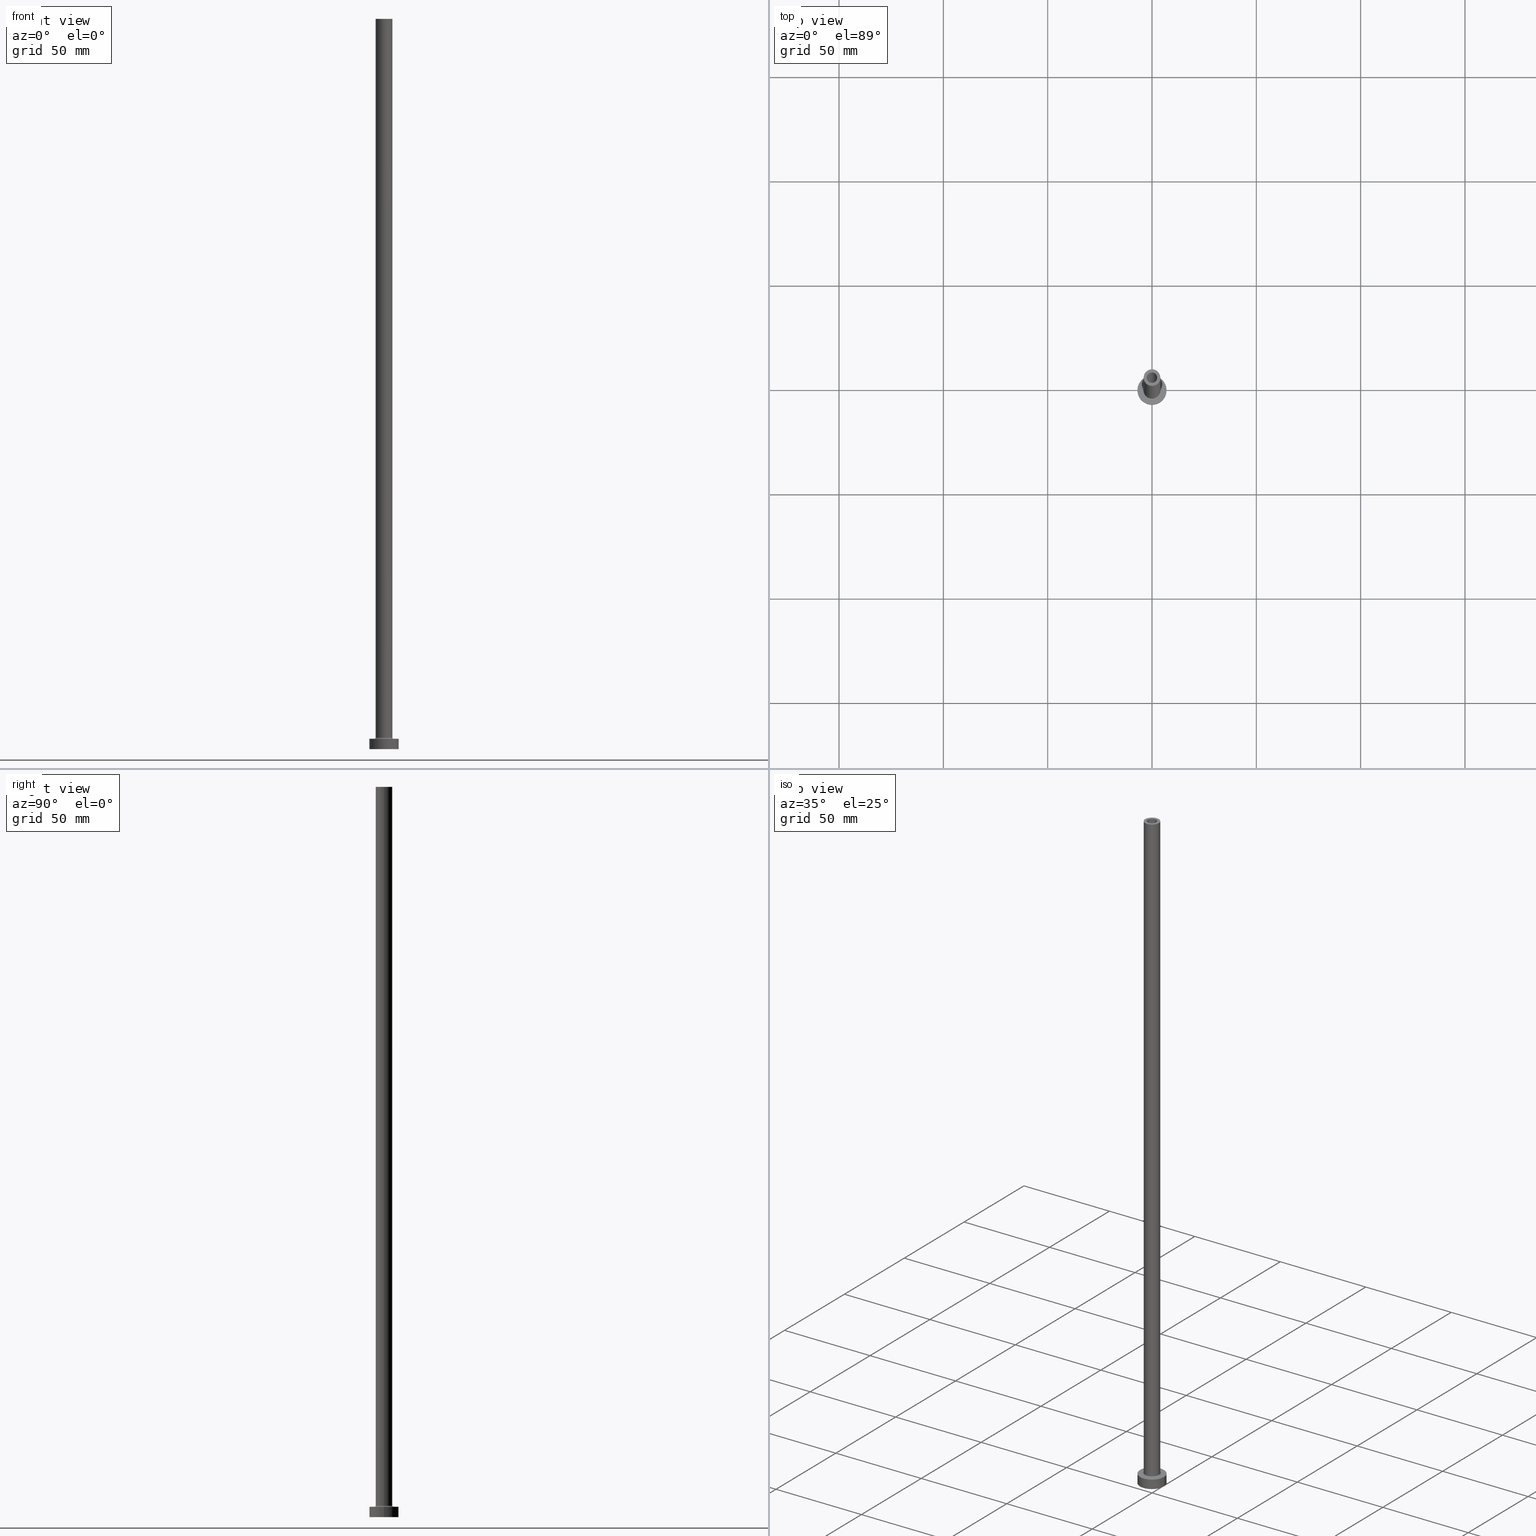
[diagram: canonical four-view strip — front | top / right | iso, engineering-drawing reading convention]
A machine part, canonical four-view strip (front | top / right | iso — engineering-drawing reading convention). The complete STEP part file that produces these views, byte-faithful:
ISO-10303-21;
HEADER;
FILE_DESCRIPTION (( 'STEP AP203' ),
    '1' );
FILE_NAME ('3701.STEP',
    '2023-02-13T17:09:50',
    ( '' ),
    ( '' ),
    'SwSTEP 2.0',
    'SolidWorks 2019',
    '' );
FILE_SCHEMA (( 'CONFIG_CONTROL_DESIGN' ));
ENDSEC;

DATA;
#1 = CARTESIAN_POINT ( 'NONE',  ( 0.000000000000000000, 0.000000000000000000, 5.500000000000005329 ) ) ;
#2 = CIRCLE ( 'NONE', #148, 7.000000000000000000 ) ;
#3 = DIRECTION ( 'NONE',  ( 0.000000000000000000, 0.000000000000000000, 1.000000000000000000 ) ) ;
#4 = ORIENTED_EDGE ( 'NONE', *, *, #141, .T. ) ;
#5 = CARTESIAN_POINT ( 'NONE',  ( 0.000000000000000000, 0.000000000000000000, 350.0000000000000000 ) ) ;
#6 = EDGE_CURVE ( 'NONE', #277, #183, #420, .T. ) ;
#7 = DIRECTION ( 'NONE',  ( -1.000000000000000000, 0.000000000000000000, 0.000000000000000000 ) ) ;
#8 = AXIS2_PLACEMENT_3D ( 'NONE', #1, #78, #35 ) ;
#9 = PERSON_AND_ORGANIZATION ( #40, #189 ) ;
#10 = CYLINDRICAL_SURFACE ( 'NONE', #191, 7.000000000000000000 ) ;
#11 = CALENDAR_DATE ( 2023, 13, 2 ) ;
#12 = DIRECTION ( 'NONE',  ( 0.000000000000000000, 0.000000000000000000, 1.000000000000000000 ) ) ;
#13 = ORIENTED_EDGE ( 'NONE', *, *, #336, .T. ) ;
#14 = CARTESIAN_POINT ( 'NONE',  ( 0.000000000000000000, 0.000000000000000000, 350.0000000000000000 ) ) ;
#15 = PRODUCT_DEFINITION_FORMATION_WITH_SPECIFIED_SOURCE ( 'LIBOVOLN�', '', #74, .NOT_KNOWN. ) ;
#16 = ORIENTED_EDGE ( 'NONE', *, *, #295, .F. ) ;
#17 = CARTESIAN_POINT ( 'NONE',  ( 0.000000000000000000, 0.000000000000000000, 0.000000000000000000 ) ) ;
#18 = ORIENTED_EDGE ( 'NONE', *, *, #264, .T. ) ;
#19 = EDGE_CURVE ( 'NONE', #183, #375, #177, .T. ) ;
#20 = CARTESIAN_POINT ( 'NONE',  ( -4.500000000000000888, 5.510910596163089556E-16, 5.500000000000005329 ) ) ;
#21 = ORIENTED_EDGE ( 'NONE', *, *, #434, .F. ) ;
#22 = CARTESIAN_POINT ( 'NONE',  ( 0.000000000000000000, 0.000000000000000000, 350.0000000000000000 ) ) ;
#23 = ADVANCED_FACE ( 'NONE', ( #150 ), #250, .F. ) ;
#24 = VERTEX_POINT ( 'NONE', #82 ) ;
#25 = CC_DESIGN_APPROVAL ( #444, ( #386 ) ) ;
#26 = FACE_OUTER_BOUND ( 'NONE', #425, .T. ) ;
#27 = AXIS2_PLACEMENT_3D ( 'NONE', #22, #455, #380 ) ;
#28 = ADVANCED_FACE ( 'NONE', ( #431 ), #401, .F. ) ;
#29 = EDGE_LOOP ( 'NONE', ( #87, #142, #288, #18 ) ) ;
#30 = CARTESIAN_POINT ( 'NONE',  ( 4.000000000000000000, 4.898587196589412829E-16, 5.500000000000005329 ) ) ;
#31 = EDGE_CURVE ( 'NONE', #198, #195, #127, .T. ) ;
#32 = ORIENTED_EDGE ( 'NONE', *, *, #118, .F. ) ;
#33 =( NAMED_UNIT ( * ) PLANE_ANGLE_UNIT ( ) SI_UNIT ( $, .RADIAN. ) );
#34 = AXIS2_PLACEMENT_3D ( 'NONE', #17, #131, #137 ) ;
#35 = DIRECTION ( 'NONE',  ( 1.000000000000000000, 0.000000000000000000, 0.000000000000000000 ) ) ;
#36 = VECTOR ( 'NONE', #103, 1000.000000000000000 ) ;
#37 = CIRCLE ( 'NONE', #294, 2.500000000000000000 ) ;
#38 = APPROVAL ( #41, 'NEUR�EN�' ) ;
#39 = VERTEX_POINT ( 'NONE', #218 ) ;
#40 = PERSON ( 'NEUR�EN�', 'NEUR�EN�', 'NEUR�EN�', ('NEUR�EN�'), ('NEUR�EN�'), ('NEUR�EN�') ) ;
#41 = APPROVAL_STATUS ( 'not_yet_approved' ) ;
#42 = CIRCLE ( 'NONE', #126, 4.000000000000000000 ) ;
#43 = ORIENTED_EDGE ( 'NONE', *, *, #313, .F. ) ;
#44 = PERSON_AND_ORGANIZATION ( #40, #189 ) ;
#45 = DIRECTION ( 'NONE',  ( 0.000000000000000000, 0.000000000000000000, 1.000000000000000000 ) ) ;
#46 = APPROVAL_DATE_TIME ( #367, #444 ) ;
#47 = CARTESIAN_POINT ( 'NONE',  ( 2.500000000000000000, 3.061616997868382648E-16, 350.0000000000000000 ) ) ;
#48 = CALENDAR_DATE ( 2023, 13, 2 ) ;
#49 = DIRECTION ( 'NONE',  ( 1.000000000000000000, 0.000000000000000000, 0.000000000000000000 ) ) ;
#50 = AXIS2_PLACEMENT_3D ( 'NONE', #368, #155, #338 ) ;
#51 = APPROVAL_ROLE ( '' ) ;
#52 = DIRECTION ( 'NONE',  ( 0.000000000000000000, 0.000000000000000000, -1.000000000000000000 ) ) ;
#53 = CC_DESIGN_PERSON_AND_ORGANIZATION_ASSIGNMENT ( #106, #243, ( #74 ) ) ;
#54 = ORIENTED_EDGE ( 'NONE', *, *, #208, .F. ) ;
#55 = EDGE_CURVE ( 'NONE', #207, #24, #185, .T. ) ;
#56 = CARTESIAN_POINT ( 'NONE',  ( 0.000000000000000000, 0.000000000000000000, 305.0000000000000000 ) ) ;
#57 = EDGE_LOOP ( 'NONE', ( #392, #439 ) ) ;
#58 = FACE_BOUND ( 'NONE', #347, .T. ) ;
#59 = AXIS2_PLACEMENT_3D ( 'NONE', #443, #61, #278 ) ;
#60 = AXIS2_PLACEMENT_3D ( 'NONE', #5, #340, #366 ) ;
#61 = DIRECTION ( 'NONE',  ( 0.000000000000000000, 0.000000000000000000, -1.000000000000000000 ) ) ;
#62 = ORIENTED_EDGE ( 'NONE', *, *, #273, .T. ) ;
#63 = DIRECTION ( 'NONE',  ( -0.000000000000000000, -0.000000000000000000, -1.000000000000000000 ) ) ;
#64 = DIRECTION ( 'NONE',  ( -1.000000000000000000, 0.000000000000000000, 0.000000000000000000 ) ) ;
#65 = CARTESIAN_POINT ( 'NONE',  ( 0.000000000000000000, 0.000000000000000000, 5.500000000000005329 ) ) ;
#66 = ORIENTED_EDGE ( 'NONE', *, *, #174, .T. ) ;
#67 = AXIS2_PLACEMENT_3D ( 'NONE', #75, #317, #459 ) ;
#68 = DIRECTION ( 'NONE',  ( 0.000000000000000000, 0.000000000000000000, -1.000000000000000000 ) ) ;
#69 = ORIENTED_EDGE ( 'NONE', *, *, #91, .T. ) ;
#70 = CARTESIAN_POINT ( 'NONE',  ( 0.000000000000000000, 0.000000000000000000, 0.000000000000000000 ) ) ;
#71 = AXIS2_PLACEMENT_3D ( 'NONE', #359, #211, #319 ) ;
#72 = MECHANICAL_CONTEXT ( 'NONE', #133, 'mechanical' ) ;
#73 = EDGE_CURVE ( 'NONE', #76, #271, #396, .T. ) ;
#74 = PRODUCT ( '3701', '3701', '', ( #72 ) ) ;
#75 = CARTESIAN_POINT ( 'NONE',  ( 0.000000000000000000, 0.000000000000000000, 0.000000000000000000 ) ) ;
#76 = VERTEX_POINT ( 'NONE', #262 ) ;
#77 = PRODUCT_RELATED_PRODUCT_CATEGORY ( 'detail', '', ( #74 ) ) ;
#78 = DIRECTION ( 'NONE',  ( 0.000000000000000000, 0.000000000000000000, 1.000000000000000000 ) ) ;
#79 = CARTESIAN_POINT ( 'NONE',  ( 0.000000000000000000, 0.000000000000000000, 312.4953318805773961 ) ) ;
#80 = PRODUCT_DEFINITION_SHAPE ( 'NONE', 'NONE',  #461 ) ;
#81 = AXIS2_PLACEMENT_3D ( 'NONE', #199, #267, #92 ) ;
#82 = CARTESIAN_POINT ( 'NONE',  ( 7.000000000000000000, 8.572527594031473190E-16, 0.000000000000000000 ) ) ;
#83 = COORDINATED_UNIVERSAL_TIME_OFFSET ( 1, 0, .AHEAD. ) ;
#84 = CARTESIAN_POINT ( 'NONE',  ( -2.500000000000000000, 0.000000000000000000, 305.0000000000000000 ) ) ;
#85 = EDGE_CURVE ( 'NONE', #175, #375, #328, .T. ) ;
#86 = DIRECTION ( 'NONE',  ( 0.000000000000000000, 0.000000000000000000, 1.000000000000000000 ) ) ;
#87 = ORIENTED_EDGE ( 'NONE', *, *, #107, .F. ) ;
#88 = DIRECTION ( 'NONE',  ( 0.000000000000000000, 0.000000000000000000, 1.000000000000000000 ) ) ;
#89 = AXIS2_PLACEMENT_3D ( 'NONE', #14, #139, #351 ) ;
#90 = FACE_OUTER_BOUND ( 'NONE', #285, .T. ) ;
#91 = EDGE_CURVE ( 'NONE', #24, #99, #293, .T. ) ;
#92 = DIRECTION ( 'NONE',  ( 1.000000000000000000, 0.000000000000000000, 0.000000000000000000 ) ) ;
#93 = CARTESIAN_POINT ( 'NONE',  ( -2.500000000000000000, 0.000000000000000000, 350.0000000000000000 ) ) ;
#94 = ADVANCED_FACE ( 'NONE', ( #395 ), #10, .T. ) ;
#95 = AXIS2_PLACEMENT_3D ( 'NONE', #145, #320, #283 ) ;
#96 = VERTEX_POINT ( 'NONE', #263 ) ;
#97 = VECTOR ( 'NONE', #436, 1000.000000000000000 ) ;
#98 = DIRECTION ( 'NONE',  ( 1.000000000000000000, 0.000000000000000000, -0.000000000000000000 ) ) ;
#99 = VERTEX_POINT ( 'NONE', #190 ) ;
#100 = FACE_OUTER_BOUND ( 'NONE', #169, .T. ) ;
#101 = ORIENTED_EDGE ( 'NONE', *, *, #6, .F. ) ;
#102 = DIRECTION ( 'NONE',  ( 0.000000000000000000, 0.000000000000000000, 1.000000000000000000 ) ) ;
#103 = DIRECTION ( 'NONE',  ( -0.000000000000000000, -0.000000000000000000, -1.000000000000000000 ) ) ;
#104 = TOROIDAL_SURFACE ( 'NONE', #8, 4.500000000000000888, 0.5000000000000000000 ) ;
#105 = FACE_OUTER_BOUND ( 'NONE', #402, .T. ) ;
#106 = PERSON_AND_ORGANIZATION ( #40, #189 ) ;
#107 = EDGE_CURVE ( 'NONE', #271, #316, #373, .T. ) ;
#108 = FACE_OUTER_BOUND ( 'NONE', #248, .T. ) ;
#109 = CC_DESIGN_APPROVAL ( #214, ( #15 ) ) ;
#110 = CARTESIAN_POINT ( 'NONE',  ( 0.000000000000000000, 0.000000000000000000, 350.0000000000000000 ) ) ;
#111 = CIRCLE ( 'NONE', #358, 2.500000000000000000 ) ;
#112 = EDGE_LOOP ( 'NONE', ( #138, #265, #343, #159 ) ) ;
#113 = DIRECTION ( 'NONE',  ( -1.000000000000000000, 0.000000000000000000, 0.000000000000000000 ) ) ;
#114 = ORIENTED_EDGE ( 'NONE', *, *, #85, .T. ) ;
#115 = APPLICATION_PROTOCOL_DEFINITION ( 'international standard', 'config_control_design', 1994, #156 ) ;
#116 = DIRECTION ( 'NONE',  ( -0.000000000000000000, -0.000000000000000000, -1.000000000000000000 ) ) ;
#117 = EDGE_CURVE ( 'NONE', #363, #99, #407, .T. ) ;
#118 = EDGE_CURVE ( 'NONE', #39, #132, #256, .T. ) ;
#119 = AXIS2_PLACEMENT_3D ( 'NONE', #129, #378, #449 ) ;
#120 = CARTESIAN_POINT ( 'NONE',  ( -2.649999999999999911, 0.000000000000000000, 312.4953318805773961 ) ) ;
#121 = FACE_BOUND ( 'NONE', #442, .T. ) ;
#122 = ADVANCED_FACE ( 'NONE', ( #121, #90 ), #226, .T. ) ;
#123 = APPROVAL_ROLE ( '' ) ;
#124 = CARTESIAN_POINT ( 'NONE',  ( 0.000000000000000000, 0.000000000000000000, 305.0000000000000000 ) ) ;
#125 = CARTESIAN_POINT ( 'NONE',  ( 0.000000000000000000, 0.000000000000000000, 305.0000000000000000 ) ) ;
#126 = AXIS2_PLACEMENT_3D ( 'NONE', #65, #348, #203 ) ;
#127 = CIRCLE ( 'NONE', #282, 2.500000000000000000 ) ;
#128 = ORIENTED_EDGE ( 'NONE', *, *, #174, .F. ) ;
#129 = CARTESIAN_POINT ( 'NONE',  ( 0.000000000000000000, 0.000000000000000000, 5.000000000000000000 ) ) ;
#130 = EDGE_LOOP ( 'NONE', ( #326, #238 ) ) ;
#131 = DIRECTION ( 'NONE',  ( -0.000000000000000000, -0.000000000000000000, -1.000000000000000000 ) ) ;
#132 = VERTEX_POINT ( 'NONE', #440 ) ;
#133 = APPLICATION_CONTEXT ( 'configuration controlled 3d designs of mechanical parts and assemblies' ) ;
#134 = DIRECTION ( 'NONE',  ( 0.000000000000000000, 0.000000000000000000, 1.000000000000000000 ) ) ;
#135 = ORIENTED_EDGE ( 'NONE', *, *, #313, .T. ) ;
#136 = VECTOR ( 'NONE', #52, 1000.000000000000000 ) ;
#137 = DIRECTION ( 'NONE',  ( 1.000000000000000000, 0.000000000000000000, 0.000000000000000000 ) ) ;
#138 = ORIENTED_EDGE ( 'NONE', *, *, #85, .F. ) ;
#139 = DIRECTION ( 'NONE',  ( 0.000000000000000000, 0.000000000000000000, 1.000000000000000000 ) ) ;
#140 = EDGE_LOOP ( 'NONE', ( #335, #307, #388, #416 ) ) ;
#141 = EDGE_CURVE ( 'NONE', #277, #175, #233, .T. ) ;
#142 = ORIENTED_EDGE ( 'NONE', *, *, #270, .T. ) ;
#143 = AXIS2_PLACEMENT_3D ( 'NONE', #70, #427, #284 ) ;
#144 = FACE_OUTER_BOUND ( 'NONE', #450, .T. ) ;
#145 = CARTESIAN_POINT ( 'NONE',  ( 0.000000000000000000, 0.000000000000000000, 5.500000000000005329 ) ) ;
#146 = CC_DESIGN_DATE_AND_TIME_ASSIGNMENT ( #157, #151, ( #461 ) ) ;
#147 =( NAMED_UNIT ( * ) SI_UNIT ( $, .STERADIAN. ) SOLID_ANGLE_UNIT ( ) );
#148 = AXIS2_PLACEMENT_3D ( 'NONE', #173, #149, #353 ) ;
#149 = DIRECTION ( 'NONE',  ( 0.000000000000000000, 0.000000000000000000, 1.000000000000000000 ) ) ;
#150 = FACE_OUTER_BOUND ( 'NONE', #140, .T. ) ;
#151 = DATE_TIME_ROLE ( 'creation_date' ) ;
#152 = CARTESIAN_POINT ( 'NONE',  ( 4.000000000000000000, 4.898587196589412829E-16, 350.0000000000000000 ) ) ;
#153 = DIRECTION ( 'NONE',  ( 1.000000000000000000, 0.000000000000000000, 0.000000000000000000 ) ) ;
#154 = VECTOR ( 'NONE', #68, 1000.000000000000000 ) ;
#155 = DIRECTION ( 'NONE',  ( -0.000000000000000000, -0.000000000000000000, -1.000000000000000000 ) ) ;
#156 = APPLICATION_CONTEXT ( 'configuration controlled 3d designs of mechanical parts and assemblies' ) ;
#157 = DATE_AND_TIME ( #371, #309 ) ;
#158 = DIRECTION ( 'NONE',  ( 0.000000000000000000, 0.000000000000000000, -1.000000000000000000 ) ) ;
#159 = ORIENTED_EDGE ( 'NONE', *, *, #19, .T. ) ;
#160 = CC_DESIGN_DATE_AND_TIME_ASSIGNMENT ( #184, #327, ( #386 ) ) ;
#161 = DIRECTION ( 'NONE',  ( 1.000000000000000000, 0.000000000000000000, -0.000000000000000000 ) ) ;
#162 = ORIENTED_EDGE ( 'NONE', *, *, #228, .F. ) ;
#163 = CARTESIAN_POINT ( 'NONE',  ( 2.649999999999999911, 3.245314017740485962E-16, 0.000000000000000000 ) ) ;
#164 = CARTESIAN_POINT ( 'NONE',  ( 0.000000000000000000, 0.000000000000000000, 5.000000000000000000 ) ) ;
#165 = LINE ( 'NONE', #93, #154 ) ;
#166 = ORIENTED_EDGE ( 'NONE', *, *, #55, .T. ) ;
#167 = DIRECTION ( 'NONE',  ( 1.000000000000000000, 0.000000000000000000, 0.000000000000000000 ) ) ;
#168 = AXIS2_PLACEMENT_3D ( 'NONE', #20, #312, #272 ) ;
#169 = EDGE_LOOP ( 'NONE', ( #21, #418 ) ) ;
#170 = AXIS2_PLACEMENT_3D ( 'NONE', #237, #419, #98 ) ;
#171 = FACE_OUTER_BOUND ( 'NONE', #314, .T. ) ;
#172 = ORIENTED_EDGE ( 'NONE', *, *, #31, .F. ) ;
#173 = CARTESIAN_POINT ( 'NONE',  ( 0.000000000000000000, 0.000000000000000000, 5.000000000000000000 ) ) ;
#174 = EDGE_CURVE ( 'NONE', #195, #198, #37, .T. ) ;
#175 = VERTEX_POINT ( 'NONE', #152 ) ;
#176 = CIRCLE ( 'NONE', #433, 2.649999999999999911 ) ;
#177 = CIRCLE ( 'NONE', #435, 4.000000000000000000 ) ;
#178 = DIRECTION ( 'NONE',  ( -0.000000000000000000, -0.000000000000000000, -1.000000000000000000 ) ) ;
#179 = CARTESIAN_POINT ( 'NONE',  ( 0.000000000000000000, 0.000000000000000000, 305.0000000000000000 ) ) ;
#180 = ORIENTED_EDGE ( 'NONE', *, *, #117, .T. ) ;
#181 = CIRCLE ( 'NONE', #89, 2.500000000000000000 ) ;
#182 = PERSON_AND_ORGANIZATION ( #40, #189 ) ;
#183 = VERTEX_POINT ( 'NONE', #432 ) ;
#184 = DATE_AND_TIME ( #48, #441 ) ;
#185 = LINE ( 'NONE', #224, #415 ) ;
#186 = LINE ( 'NONE', #120, #310 ) ;
#187 = EDGE_CURVE ( 'NONE', #76, #385, #186, .T. ) ;
#188 = APPROVAL_DATE_TIME ( #337, #38 ) ;
#189 = ORGANIZATION ( 'NEUR�EN�', 'NEUR�EN�', '' ) ;
#190 = CARTESIAN_POINT ( 'NONE',  ( -7.000000000000000000, 0.000000000000000000, 0.000000000000000000 ) ) ;
#191 = AXIS2_PLACEMENT_3D ( 'NONE', #404, #289, #7 ) ;
#192 = VERTEX_POINT ( 'NONE', #398 ) ;
#193 = APPROVAL_DATE_TIME ( #333, #214 ) ;
#194 = CARTESIAN_POINT ( 'NONE',  ( -7.000000000000000000, 0.000000000000000000, 5.000000000000000000 ) ) ;
#195 = VERTEX_POINT ( 'NONE', #84 ) ;
#196 = DIRECTION ( 'NONE',  ( 0.000000000000000000, 0.000000000000000000, -1.000000000000000000 ) ) ;
#197 = DIRECTION ( 'NONE',  ( 0.000000000000000000, 0.000000000000000000, 1.000000000000000000 ) ) ;
#198 = VERTEX_POINT ( 'NONE', #296 ) ;
#199 = CARTESIAN_POINT ( 'NONE',  ( 0.000000000000000000, 0.000000000000000000, 350.0000000000000000 ) ) ;
#200 = ORIENTED_EDGE ( 'NONE', *, *, #339, .F. ) ;
#201 = DIRECTION ( 'NONE',  ( -1.000000000000000000, 0.000000000000000000, 0.000000000000000000 ) ) ;
#202 = DIRECTION ( 'NONE',  ( 1.000000000000000000, 0.000000000000000000, 0.000000000000000000 ) ) ;
#203 = DIRECTION ( 'NONE',  ( 1.000000000000000000, 0.000000000000000000, 0.000000000000000000 ) ) ;
#204 =( GEOMETRIC_REPRESENTATION_CONTEXT ( 3 ) GLOBAL_UNCERTAINTY_ASSIGNED_CONTEXT ( ( #209 ) ) GLOBAL_UNIT_ASSIGNED_CONTEXT ( ( #391, #33, #147 ) ) REPRESENTATION_CONTEXT ( 'NONE', 'WORKASPACE' ) );
#205 = ORIENTED_EDGE ( 'NONE', *, *, #19, .F. ) ;
#206 = CARTESIAN_POINT ( 'NONE',  ( 0.000000000000000000, 0.000000000000000000, 0.000000000000000000 ) ) ;
#207 = VERTEX_POINT ( 'NONE', #220 ) ;
#208 = EDGE_CURVE ( 'NONE', #96, #198, #438, .T. ) ;
#209 = UNCERTAINTY_MEASURE_WITH_UNIT (LENGTH_MEASURE( 1.000000000000000082E-05 ), #391, 'distance_accuracy_value', 'NONE');
#210 = AXIS2_PLACEMENT_3D ( 'NONE', #227, #345, #269 ) ;
#211 = DIRECTION ( 'NONE',  ( -0.000000000000000000, -0.000000000000000000, -1.000000000000000000 ) ) ;
#212 = CC_DESIGN_PERSON_AND_ORGANIZATION_ASSIGNMENT ( #9, #403, ( #461 ) ) ;
#213 = ORIENTED_EDGE ( 'NONE', *, *, #453, .T. ) ;
#214 = APPROVAL ( #362, 'NEUR�EN�' ) ;
#215 = COORDINATED_UNIVERSAL_TIME_OFFSET ( 1, 0, .AHEAD. ) ;
#216 = ORIENTED_EDGE ( 'NONE', *, *, #266, .F. ) ;
#217 = APPROVAL_PERSON_ORGANIZATION ( #182, #38, #51 ) ;
#218 = CARTESIAN_POINT ( 'NONE',  ( -4.500000000000000888, 5.510910596163088569E-16, 5.000000000000002665 ) ) ;
#219 = SECURITY_CLASSIFICATION_LEVEL ( 'unclassified' ) ;
#220 = CARTESIAN_POINT ( 'NONE',  ( 7.000000000000000000, 8.572527594031473190E-16, 5.000000000000000000 ) ) ;
#221 = CALENDAR_DATE ( 2023, 13, 2 ) ;
#222 = CARTESIAN_POINT ( 'NONE',  ( 2.649999999999999911, 3.245314017740485962E-16, 312.4953318805773961 ) ) ;
#223 = LOCAL_TIME ( 18, 9, 50.00000000000000000, #258 ) ;
#224 = CARTESIAN_POINT ( 'NONE',  ( 7.000000000000000000, 8.572527594031473190E-16, 5.000000000000000000 ) ) ;
#225 = AXIS2_PLACEMENT_3D ( 'NONE', #164, #102, #387 ) ;
#226 = PLANE ( 'NONE',  #331 ) ;
#227 = CARTESIAN_POINT ( 'NONE',  ( 0.000000000000000000, 0.000000000000000000, 5.000000000000000000 ) ) ;
#228 = EDGE_CURVE ( 'NONE', #96, #192, #111, .T. ) ;
#229 = DESIGN_CONTEXT ( 'detailed design', #156, 'design' ) ;
#230 = CYLINDRICAL_SURFACE ( 'NONE', #344, 4.000000000000000000 ) ;
#231 = CIRCLE ( 'NONE', #210, 7.000000000000000000 ) ;
#232 = VECTOR ( 'NONE', #116, 1000.000000000000000 ) ;
#233 = CIRCLE ( 'NONE', #60, 4.000000000000000000 ) ;
#234 = DIRECTION ( 'NONE',  ( 1.000000000000000000, 0.000000000000000000, 0.000000000000000000 ) ) ;
#235 = ORIENTED_EDGE ( 'NONE', *, *, #341, .T. ) ;
#236 = ADVANCED_FACE ( 'NONE', ( #384, #100 ), #417, .F. ) ;
#237 = CARTESIAN_POINT ( 'NONE',  ( 0.000000000000000000, 0.000000000000000000, 0.000000000000000000 ) ) ;
#238 = ORIENTED_EDGE ( 'NONE', *, *, #270, .F. ) ;
#239 = CARTESIAN_POINT ( 'NONE',  ( 0.000000000000000000, 0.000000000000000000, 305.0000000000000000 ) ) ;
#240 = CC_DESIGN_SECURITY_CLASSIFICATION ( #386, ( #15 ) ) ;
#241 = CARTESIAN_POINT ( 'NONE',  ( 0.000000000000000000, 0.000000000000000000, 5.500000000000005329 ) ) ;
#242 = DIRECTION ( 'NONE',  ( 1.000000000000000000, 0.000000000000000000, -0.000000000000000000 ) ) ;
#243 = PERSON_AND_ORGANIZATION_ROLE ( 'design_owner' ) ;
#244 = MANIFOLD_SOLID_BREP ( 'Odebrat vysunut�m4', #357 ) ;
#245 = CYLINDRICAL_SURFACE ( 'NONE', #71, 7.000000000000000000 ) ;
#246 = CIRCLE ( 'NONE', #332, 0.5000000000000004441 ) ;
#247 = CARTESIAN_POINT ( 'NONE',  ( -7.000000000000000000, 0.000000000000000000, 5.000000000000000000 ) ) ;
#248 = EDGE_LOOP ( 'NONE', ( #200, #114, #62, #101 ) ) ;
#249 = ADVANCED_FACE ( 'NONE', ( #276 ), #346, .F. ) ;
#250 = CYLINDRICAL_SURFACE ( 'NONE', #390, 2.649999999999999911 ) ;
#251 = ADVANCED_FACE ( 'NONE', ( #58, #171 ), #303, .T. ) ;
#252 = APPROVAL_ROLE ( '' ) ;
#253 = DIRECTION ( 'NONE',  ( 1.000000000000000000, 0.000000000000000000, 0.000000000000000000 ) ) ;
#254 = CIRCLE ( 'NONE', #413, 2.649999999999999911 ) ;
#255 = APPROVAL_STATUS ( 'not_yet_approved' ) ;
#256 = CIRCLE ( 'NONE', #50, 4.500000000000000888 ) ;
#257 = CARTESIAN_POINT ( 'NONE',  ( 0.000000000000000000, 0.000000000000000000, 312.4953318805773961 ) ) ;
#258 = COORDINATED_UNIVERSAL_TIME_OFFSET ( 1, 0, .AHEAD. ) ;
#259 = DIRECTION ( 'NONE',  ( -0.000000000000000000, -0.000000000000000000, -1.000000000000000000 ) ) ;
#260 = SHAPE_DEFINITION_REPRESENTATION ( #80, #261 ) ;
#261 = ADVANCED_BREP_SHAPE_REPRESENTATION ( '3701', ( #244, #67 ), #204 ) ;
#262 = CARTESIAN_POINT ( 'NONE',  ( -2.649999999999999911, 0.000000000000000000, 305.0000000000000000 ) ) ;
#263 = CARTESIAN_POINT ( 'NONE',  ( 2.500000000000000000, 3.061616997868382648E-16, 350.0000000000000000 ) ) ;
#264 = EDGE_CURVE ( 'NONE', #385, #316, #281, .T. ) ;
#265 = ORIENTED_EDGE ( 'NONE', *, *, #141, .F. ) ;
#266 = EDGE_CURVE ( 'NONE', #183, #39, #286, .T. ) ;
#267 = DIRECTION ( 'NONE',  ( 0.000000000000000000, 0.000000000000000000, 1.000000000000000000 ) ) ;
#268 = ORIENTED_EDGE ( 'NONE', *, *, #412, .F. ) ;
#269 = DIRECTION ( 'NONE',  ( 1.000000000000000000, 0.000000000000000000, 0.000000000000000000 ) ) ;
#270 = EDGE_CURVE ( 'NONE', #271, #76, #176, .T. ) ;
#271 = VERTEX_POINT ( 'NONE', #408 ) ;
#272 = DIRECTION ( 'NONE',  ( -1.000000000000000000, 1.224646799147351482E-16, 0.000000000000000000 ) ) ;
#273 = EDGE_CURVE ( 'NONE', #375, #183, #42, .T. ) ;
#274 = AXIS2_PLACEMENT_3D ( 'NONE', #330, #86, #253 ) ;
#275 = DIRECTION ( 'NONE',  ( 0.000000000000000000, 0.000000000000000000, -1.000000000000000000 ) ) ;
#276 = FACE_OUTER_BOUND ( 'NONE', #323, .T. ) ;
#277 = VERTEX_POINT ( 'NONE', #414 ) ;
#278 = DIRECTION ( 'NONE',  ( -1.000000000000000000, 0.000000000000000000, 0.000000000000000000 ) ) ;
#279 = ORIENTED_EDGE ( 'NONE', *, *, #412, .T. ) ;
#280 = CARTESIAN_POINT ( 'NONE',  ( 4.500000000000000888, 0.000000000000000000, 5.500000000000005329 ) ) ;
#281 = CIRCLE ( 'NONE', #34, 2.649999999999999911 ) ;
#282 = AXIS2_PLACEMENT_3D ( 'NONE', #56, #45, #334 ) ;
#283 = DIRECTION ( 'NONE',  ( 1.000000000000000000, 0.000000000000000000, 0.000000000000000000 ) ) ;
#284 = DIRECTION ( 'NONE',  ( 1.000000000000000000, 0.000000000000000000, 0.000000000000000000 ) ) ;
#285 = EDGE_LOOP ( 'NONE', ( #4, #454 ) ) ;
#286 = CIRCLE ( 'NONE', #168, 0.5000000000000004441 ) ;
#287 = FACE_BOUND ( 'NONE', #429, .T. ) ;
#288 = ORIENTED_EDGE ( 'NONE', *, *, #187, .T. ) ;
#289 = DIRECTION ( 'NONE',  ( -0.000000000000000000, -0.000000000000000000, -1.000000000000000000 ) ) ;
#290 = CALENDAR_DATE ( 2023, 13, 2 ) ;
#291 = CARTESIAN_POINT ( 'NONE',  ( 4.000000000000000000, 4.898587196589412829E-16, 350.0000000000000000 ) ) ;
#292 = PERSON_AND_ORGANIZATION_ROLE ( 'creator' ) ;
#293 = CIRCLE ( 'NONE', #274, 7.000000000000000000 ) ;
#294 = AXIS2_PLACEMENT_3D ( 'NONE', #125, #298, #49 ) ;
#295 = EDGE_CURVE ( 'NONE', #192, #195, #165, .T. ) ;
#296 = CARTESIAN_POINT ( 'NONE',  ( 2.500000000000000000, 3.061616997868382648E-16, 305.0000000000000000 ) ) ;
#297 = EDGE_CURVE ( 'NONE', #316, #385, #254, .T. ) ;
#298 = DIRECTION ( 'NONE',  ( 0.000000000000000000, 0.000000000000000000, 1.000000000000000000 ) ) ;
#299 = ORIENTED_EDGE ( 'NONE', *, *, #434, .T. ) ;
#300 = DIRECTION ( 'NONE',  ( -1.000000000000000000, 0.000000000000000000, 0.000000000000000000 ) ) ;
#301 = ORIENTED_EDGE ( 'NONE', *, *, #228, .T. ) ;
#302 = TOROIDAL_SURFACE ( 'NONE', #95, 4.500000000000000888, 0.5000000000000000000 ) ;
#303 = PLANE ( 'NONE',  #225 ) ;
#304 = ORIENTED_EDGE ( 'NONE', *, *, #295, .T. ) ;
#305 = CYLINDRICAL_SURFACE ( 'NONE', #59, 2.500000000000000000 ) ;
#306 = ORIENTED_EDGE ( 'NONE', *, *, #31, .T. ) ;
#307 = ORIENTED_EDGE ( 'NONE', *, *, #107, .T. ) ;
#308 = DIRECTION ( 'NONE',  ( -0.000000000000000000, -0.000000000000000000, -1.000000000000000000 ) ) ;
#309 = LOCAL_TIME ( 18, 9, 50.00000000000000000, #215 ) ;
#310 = VECTOR ( 'NONE', #158, 1000.000000000000000 ) ;
#311 = ORIENTED_EDGE ( 'NONE', *, *, #273, .F. ) ;
#312 = DIRECTION ( 'NONE',  ( 1.224646799147353207E-16, 1.000000000000000000, -0.000000000000000000 ) ) ;
#313 = EDGE_CURVE ( 'NONE', #192, #96, #181, .T. ) ;
#314 = EDGE_LOOP ( 'NONE', ( #279, #235 ) ) ;
#315 = DIRECTION ( 'NONE',  ( 0.000000000000000000, -1.000000000000000000, 0.000000000000000000 ) ) ;
#316 = VERTEX_POINT ( 'NONE', #163 ) ;
#317 = DIRECTION ( 'NONE',  ( 0.000000000000000000, 0.000000000000000000, 1.000000000000000000 ) ) ;
#318 = CIRCLE ( 'NONE', #119, 4.500000000000000888 ) ;
#319 = DIRECTION ( 'NONE',  ( -1.000000000000000000, 0.000000000000000000, 0.000000000000000000 ) ) ;
#320 = DIRECTION ( 'NONE',  ( 0.000000000000000000, 0.000000000000000000, 1.000000000000000000 ) ) ;
#321 = ADVANCED_FACE ( 'NONE', ( #26 ), #305, .F. ) ;
#322 = CARTESIAN_POINT ( 'NONE',  ( -2.649999999999999911, 0.000000000000000000, 0.000000000000000000 ) ) ;
#323 = EDGE_LOOP ( 'NONE', ( #135, #379, #128, #16 ) ) ;
#324 = LOCAL_TIME ( 18, 9, 50.00000000000000000, #83 ) ;
#325 = PERSON_AND_ORGANIZATION ( #40, #189 ) ;
#326 = ORIENTED_EDGE ( 'NONE', *, *, #73, .F. ) ;
#327 = DATE_TIME_ROLE ( 'classification_date' ) ;
#328 = LINE ( 'NONE', #291, #232 ) ;
#329 = COORDINATED_UNIVERSAL_TIME_OFFSET ( 1, 0, .AHEAD. ) ;
#330 = CARTESIAN_POINT ( 'NONE',  ( 0.000000000000000000, 0.000000000000000000, 0.000000000000000000 ) ) ;
#331 = AXIS2_PLACEMENT_3D ( 'NONE', #377, #12, #161 ) ;
#332 = AXIS2_PLACEMENT_3D ( 'NONE', #280, #315, #389 ) ;
#333 = DATE_AND_TIME ( #221, #324 ) ;
#334 = DIRECTION ( 'NONE',  ( 1.000000000000000000, 0.000000000000000000, 0.000000000000000000 ) ) ;
#335 = ORIENTED_EDGE ( 'NONE', *, *, #73, .T. ) ;
#336 = EDGE_CURVE ( 'NONE', #132, #39, #318, .T. ) ;
#337 = DATE_AND_TIME ( #290, #458 ) ;
#338 = DIRECTION ( 'NONE',  ( 1.000000000000000000, 0.000000000000000000, 0.000000000000000000 ) ) ;
#339 = EDGE_CURVE ( 'NONE', #175, #277, #350, .T. ) ;
#340 = DIRECTION ( 'NONE',  ( 0.000000000000000000, 0.000000000000000000, 1.000000000000000000 ) ) ;
#341 = EDGE_CURVE ( 'NONE', #207, #363, #231, .T. ) ;
#342 = ADVANCED_FACE ( 'NONE', ( #409 ), #230, .T. ) ;
#343 = ORIENTED_EDGE ( 'NONE', *, *, #6, .T. ) ;
#344 = AXIS2_PLACEMENT_3D ( 'NONE', #382, #63, #201 ) ;
#345 = DIRECTION ( 'NONE',  ( 0.000000000000000000, 0.000000000000000000, 1.000000000000000000 ) ) ;
#346 = CYLINDRICAL_SURFACE ( 'NONE', #27, 2.500000000000000000 ) ;
#347 = EDGE_LOOP ( 'NONE', ( #13, #393 ) ) ;
#348 = DIRECTION ( 'NONE',  ( 0.000000000000000000, 0.000000000000000000, 1.000000000000000000 ) ) ;
#349 = ORIENTED_EDGE ( 'NONE', *, *, #55, .F. ) ;
#350 = CIRCLE ( 'NONE', #81, 4.000000000000000000 ) ;
#351 = DIRECTION ( 'NONE',  ( 1.000000000000000000, 0.000000000000000000, 0.000000000000000000 ) ) ;
#352 = EDGE_LOOP ( 'NONE', ( #349, #268, #180, #299 ) ) ;
#353 = DIRECTION ( 'NONE',  ( 1.000000000000000000, 0.000000000000000000, 0.000000000000000000 ) ) ;
#354 = ORIENTED_EDGE ( 'NONE', *, *, #453, .F. ) ;
#355 = CYLINDRICAL_SURFACE ( 'NONE', #364, 4.000000000000000000 ) ;
#356 = PLANE ( 'NONE',  #421 ) ;
#357 = CLOSED_SHELL ( 'NONE', ( #249, #23, #410, #446, #447, #94, #251, #236, #342, #122, #399, #28, #376, #321 ) ) ;
#358 = AXIS2_PLACEMENT_3D ( 'NONE', #445, #134, #452 ) ;
#359 = CARTESIAN_POINT ( 'NONE',  ( 0.000000000000000000, 0.000000000000000000, 5.000000000000000000 ) ) ;
#360 = APPLICATION_PROTOCOL_DEFINITION ( 'international standard', 'config_control_design', 1994, #133 ) ;
#361 = CARTESIAN_POINT ( 'NONE',  ( -4.000000000000000000, 0.000000000000000000, 350.0000000000000000 ) ) ;
#362 = APPROVAL_STATUS ( 'not_yet_approved' ) ;
#363 = VERTEX_POINT ( 'NONE', #247 ) ;
#364 = AXIS2_PLACEMENT_3D ( 'NONE', #110, #178, #113 ) ;
#365 = PERSON_AND_ORGANIZATION_ROLE ( 'design_supplier' ) ;
#366 = DIRECTION ( 'NONE',  ( 1.000000000000000000, 0.000000000000000000, 0.000000000000000000 ) ) ;
#367 = DATE_AND_TIME ( #11, #223 ) ;
#368 = CARTESIAN_POINT ( 'NONE',  ( 0.000000000000000000, 0.000000000000000000, 5.000000000000000000 ) ) ;
#369 = DIRECTION ( 'NONE',  ( -0.000000000000000000, -0.000000000000000000, -1.000000000000000000 ) ) ;
#370 = APPROVAL_PERSON_ORGANIZATION ( #44, #444, #123 ) ;
#371 = CALENDAR_DATE ( 2023, 13, 2 ) ;
#372 = VECTOR ( 'NONE', #369, 1000.000000000000000 ) ;
#373 = LINE ( 'NONE', #222, #136 ) ;
#374 = CC_DESIGN_PERSON_AND_ORGANIZATION_ASSIGNMENT ( #394, #365, ( #15 ) ) ;
#375 = VERTEX_POINT ( 'NONE', #30 ) ;
#376 = ADVANCED_FACE ( 'NONE', ( #287, #423 ), #356, .F. ) ;
#377 = CARTESIAN_POINT ( 'NONE',  ( 0.000000000000000000, 0.000000000000000000, 350.0000000000000000 ) ) ;
#378 = DIRECTION ( 'NONE',  ( -0.000000000000000000, -0.000000000000000000, -1.000000000000000000 ) ) ;
#379 = ORIENTED_EDGE ( 'NONE', *, *, #208, .T. ) ;
#380 = DIRECTION ( 'NONE',  ( -1.000000000000000000, 0.000000000000000000, 0.000000000000000000 ) ) ;
#381 = AXIS2_PLACEMENT_3D ( 'NONE', #124, #88, #153 ) ;
#382 = CARTESIAN_POINT ( 'NONE',  ( 0.000000000000000000, 0.000000000000000000, 350.0000000000000000 ) ) ;
#383 = ORIENTED_EDGE ( 'NONE', *, *, #341, .F. ) ;
#384 = FACE_BOUND ( 'NONE', #57, .T. ) ;
#385 = VERTEX_POINT ( 'NONE', #322 ) ;
#386 = SECURITY_CLASSIFICATION ( '', '', #219 ) ;
#387 = DIRECTION ( 'NONE',  ( 1.000000000000000000, 0.000000000000000000, -0.000000000000000000 ) ) ;
#388 = ORIENTED_EDGE ( 'NONE', *, *, #297, .T. ) ;
#389 = DIRECTION ( 'NONE',  ( 0.000000000000000000, 0.000000000000000000, -1.000000000000000000 ) ) ;
#390 = AXIS2_PLACEMENT_3D ( 'NONE', #79, #275, #64 ) ;
#391 =( LENGTH_UNIT ( ) NAMED_UNIT ( * ) SI_UNIT ( .MILLI., .METRE. ) );
#392 = ORIENTED_EDGE ( 'NONE', *, *, #264, .F. ) ;
#393 = ORIENTED_EDGE ( 'NONE', *, *, #118, .T. ) ;
#394 = PERSON_AND_ORGANIZATION ( #40, #189 ) ;
#395 = FACE_OUTER_BOUND ( 'NONE', #352, .T. ) ;
#396 = CIRCLE ( 'NONE', #381, 2.649999999999999911 ) ;
#397 = PERSON_AND_ORGANIZATION ( #40, #189 ) ;
#398 = CARTESIAN_POINT ( 'NONE',  ( -2.500000000000000000, 0.000000000000000000, 350.0000000000000000 ) ) ;
#399 = ADVANCED_FACE ( 'NONE', ( #144 ), #302, .F. ) ;
#400 = PERSON_AND_ORGANIZATION_ROLE ( 'classification_officer' ) ;
#401 = CYLINDRICAL_SURFACE ( 'NONE', #422, 2.649999999999999911 ) ;
#402 = EDGE_LOOP ( 'NONE', ( #205, #456, #448, #354 ) ) ;
#403 = PERSON_AND_ORGANIZATION_ROLE ( 'creator' ) ;
#404 = CARTESIAN_POINT ( 'NONE',  ( 0.000000000000000000, 0.000000000000000000, 5.000000000000000000 ) ) ;
#405 = CIRCLE ( 'NONE', #143, 7.000000000000000000 ) ;
#406 = COORDINATED_UNIVERSAL_TIME_OFFSET ( 1, 0, .AHEAD. ) ;
#407 = LINE ( 'NONE', #194, #372 ) ;
#408 = CARTESIAN_POINT ( 'NONE',  ( 2.649999999999999911, 3.245314017740485962E-16, 305.0000000000000000 ) ) ;
#409 = FACE_OUTER_BOUND ( 'NONE', #112, .T. ) ;
#410 = ADVANCED_FACE ( 'NONE', ( #105 ), #104, .F. ) ;
#411 = EDGE_LOOP ( 'NONE', ( #383, #166, #69, #457 ) ) ;
#412 = EDGE_CURVE ( 'NONE', #363, #207, #2, .T. ) ;
#413 = AXIS2_PLACEMENT_3D ( 'NONE', #206, #308, #167 ) ;
#414 = CARTESIAN_POINT ( 'NONE',  ( -4.000000000000000000, 0.000000000000000000, 350.0000000000000000 ) ) ;
#415 = VECTOR ( 'NONE', #259, 1000.000000000000000 ) ;
#416 = ORIENTED_EDGE ( 'NONE', *, *, #187, .F. ) ;
#417 = PLANE ( 'NONE',  #170 ) ;
#418 = ORIENTED_EDGE ( 'NONE', *, *, #91, .F. ) ;
#419 = DIRECTION ( 'NONE',  ( 0.000000000000000000, 0.000000000000000000, 1.000000000000000000 ) ) ;
#420 = LINE ( 'NONE', #361, #36 ) ;
#421 = AXIS2_PLACEMENT_3D ( 'NONE', #179, #460, #242 ) ;
#422 = AXIS2_PLACEMENT_3D ( 'NONE', #257, #196, #300 ) ;
#423 = FACE_OUTER_BOUND ( 'NONE', #130, .T. ) ;
#424 = FACE_OUTER_BOUND ( 'NONE', #411, .T. ) ;
#425 = EDGE_LOOP ( 'NONE', ( #54, #301, #304, #172 ) ) ;
#426 = CC_DESIGN_APPROVAL ( #38, ( #461 ) ) ;
#427 = DIRECTION ( 'NONE',  ( 0.000000000000000000, 0.000000000000000000, 1.000000000000000000 ) ) ;
#428 = CC_DESIGN_PERSON_AND_ORGANIZATION_ASSIGNMENT ( #430, #400, ( #386 ) ) ;
#429 = EDGE_LOOP ( 'NONE', ( #66, #306 ) ) ;
#430 = PERSON_AND_ORGANIZATION ( #40, #189 ) ;
#431 = FACE_OUTER_BOUND ( 'NONE', #29, .T. ) ;
#432 = CARTESIAN_POINT ( 'NONE',  ( -4.000000000000000000, 0.000000000000000000, 5.500000000000005329 ) ) ;
#433 = AXIS2_PLACEMENT_3D ( 'NONE', #239, #197, #234 ) ;
#434 = EDGE_CURVE ( 'NONE', #99, #24, #405, .T. ) ;
#435 = AXIS2_PLACEMENT_3D ( 'NONE', #241, #3, #202 ) ;
#436 = DIRECTION ( 'NONE',  ( 0.000000000000000000, 0.000000000000000000, -1.000000000000000000 ) ) ;
#437 = CC_DESIGN_PERSON_AND_ORGANIZATION_ASSIGNMENT ( #325, #292, ( #15 ) ) ;
#438 = LINE ( 'NONE', #47, #97 ) ;
#439 = ORIENTED_EDGE ( 'NONE', *, *, #297, .F. ) ;
#440 = CARTESIAN_POINT ( 'NONE',  ( 4.500000000000000888, 0.000000000000000000, 5.000000000000002665 ) ) ;
#441 = LOCAL_TIME ( 18, 9, 50.00000000000000000, #329 ) ;
#442 = EDGE_LOOP ( 'NONE', ( #43, #162 ) ) ;
#443 = CARTESIAN_POINT ( 'NONE',  ( 0.000000000000000000, 0.000000000000000000, 350.0000000000000000 ) ) ;
#444 = APPROVAL ( #255, 'NEUR�EN�' ) ;
#445 = CARTESIAN_POINT ( 'NONE',  ( 0.000000000000000000, 0.000000000000000000, 350.0000000000000000 ) ) ;
#446 = ADVANCED_FACE ( 'NONE', ( #108 ), #355, .T. ) ;
#447 = ADVANCED_FACE ( 'NONE', ( #424 ), #245, .T. ) ;
#448 = ORIENTED_EDGE ( 'NONE', *, *, #336, .F. ) ;
#449 = DIRECTION ( 'NONE',  ( 1.000000000000000000, 0.000000000000000000, 0.000000000000000000 ) ) ;
#450 = EDGE_LOOP ( 'NONE', ( #216, #311, #213, #32 ) ) ;
#451 = APPROVAL_PERSON_ORGANIZATION ( #397, #214, #252 ) ;
#452 = DIRECTION ( 'NONE',  ( 1.000000000000000000, 0.000000000000000000, 0.000000000000000000 ) ) ;
#453 = EDGE_CURVE ( 'NONE', #375, #132, #246, .T. ) ;
#454 = ORIENTED_EDGE ( 'NONE', *, *, #339, .T. ) ;
#455 = DIRECTION ( 'NONE',  ( 0.000000000000000000, 0.000000000000000000, -1.000000000000000000 ) ) ;
#456 = ORIENTED_EDGE ( 'NONE', *, *, #266, .T. ) ;
#457 = ORIENTED_EDGE ( 'NONE', *, *, #117, .F. ) ;
#458 = LOCAL_TIME ( 18, 9, 50.00000000000000000, #406 ) ;
#459 = DIRECTION ( 'NONE',  ( 1.000000000000000000, 0.000000000000000000, 0.000000000000000000 ) ) ;
#460 = DIRECTION ( 'NONE',  ( 0.000000000000000000, 0.000000000000000000, 1.000000000000000000 ) ) ;
#461 = PRODUCT_DEFINITION ( 'NEZN�M�', '', #15, #229 ) ;
ENDSEC;
END-ISO-10303-21;
